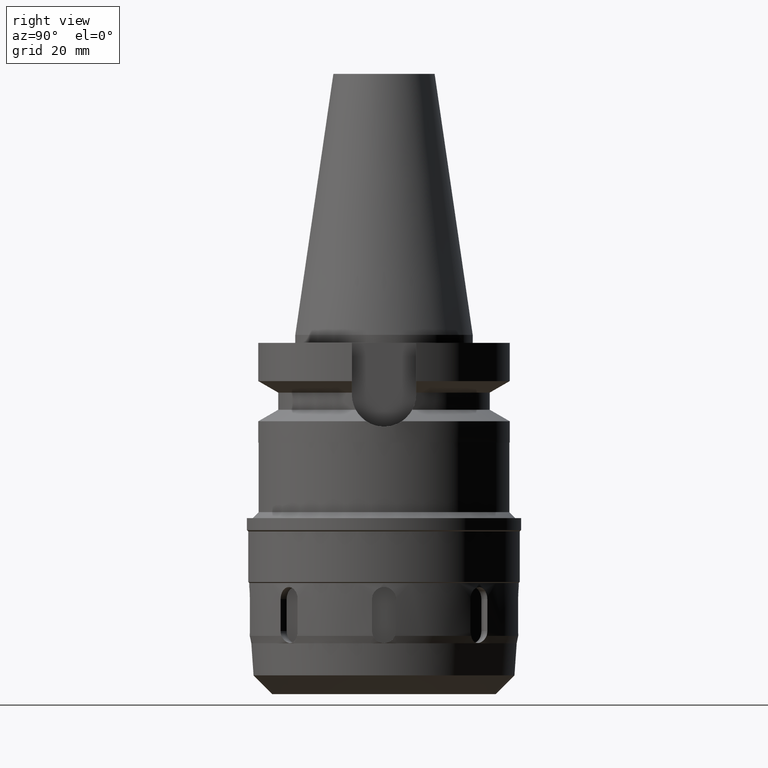
[diagram: clean part render]
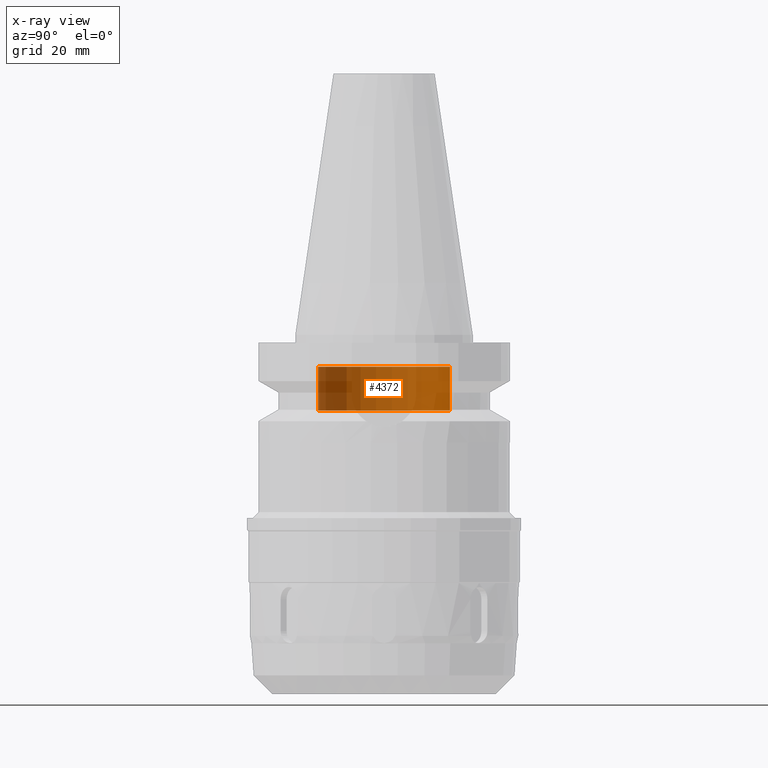
[diagram: x-ray — body ghosted, one internal face saturated and labeled with its STEP entity id]
A machine part, right view, then the same camera in x-ray: the body is ghosted and one INTERNAL B-rep face — a face not visible from any outside direction — is saturated and labeled: STEP entity #4372.
In plain terms, the highlighted cylindrical surface (partial cylindrical patch) has radius 16.5 mm, axis along (0, 0, -1).
Its self-contained STEP definition (entity closure, byte-faithful):
#2204=CARTESIAN_POINT('',(0.E0,2.120720862083E-14,-1.9E1));
#2205=DIRECTION('',(0.E0,0.E0,-1.E0));
#2206=DIRECTION('',(0.E0,-1.E0,0.E0));
#2207=AXIS2_PLACEMENT_3D('',#2204,#2205,#2206);
#2236=DIRECTION('',(0.E0,0.E0,1.E0));
#2237=VECTOR('',#2236,1.1E1);
#2238=CARTESIAN_POINT('',(0.E0,-1.65E1,-1.9E1));
#2239=LINE('',#2238,#2237);
#2243=DIRECTION('',(0.E0,0.E0,1.E0));
#2244=VECTOR('',#2243,1.1E1);
#2245=CARTESIAN_POINT('',(0.E0,1.65E1,-1.9E1));
#2246=LINE('',#2245,#2244);
#2258=CARTESIAN_POINT('',(0.E0,2.120720862083E-14,-8.E0));
#2259=DIRECTION('',(0.E0,0.E0,1.E0));
#2260=DIRECTION('',(0.E0,1.E0,0.E0));
#2261=AXIS2_PLACEMENT_3D('',#2258,#2259,#2260);
#2530=CARTESIAN_POINT('',(0.E0,-1.65E1,-8.E0));
#2531=CARTESIAN_POINT('',(0.E0,1.65E1,-8.E0));
#2532=VERTEX_POINT('',#2530);
#2533=VERTEX_POINT('',#2531);
#2534=CARTESIAN_POINT('',(0.E0,1.65E1,-1.9E1));
#2535=VERTEX_POINT('',#2534);
#2536=CARTESIAN_POINT('',(0.E0,-1.65E1,-1.9E1));
#2537=VERTEX_POINT('',#2536);
#4358=CARTESIAN_POINT('',(0.E0,2.120720862083E-14,7.317E1));
#4359=DIRECTION('',(0.E0,0.E0,-1.E0));
#4360=DIRECTION('',(0.E0,-1.E0,0.E0));
#4361=AXIS2_PLACEMENT_3D('',#4358,#4359,#4360);
#4362=CYLINDRICAL_SURFACE('',#4361,1.65E1);
#4364=ORIENTED_EDGE('',*,*,#4363,.F.);
#4365=ORIENTED_EDGE('',*,*,#4347,.F.);
#4367=ORIENTED_EDGE('',*,*,#4366,.T.);
#4369=ORIENTED_EDGE('',*,*,#4368,.F.);
#4370=EDGE_LOOP('',(#4364,#4365,#4367,#4369));
#4371=FACE_OUTER_BOUND('',#4370,.F.);
#2208=CIRCLE('',#2207,1.65E1);
#2262=CIRCLE('',#2261,1.65E1);
#4347=EDGE_CURVE('',#2537,#2535,#2208,.T.);
#4363=EDGE_CURVE('',#2535,#2533,#2246,.T.);
#4366=EDGE_CURVE('',#2537,#2532,#2239,.T.);
#4368=EDGE_CURVE('',#2533,#2532,#2262,.T.);
#4372=ADVANCED_FACE('',(#4371),#4362,.F.);